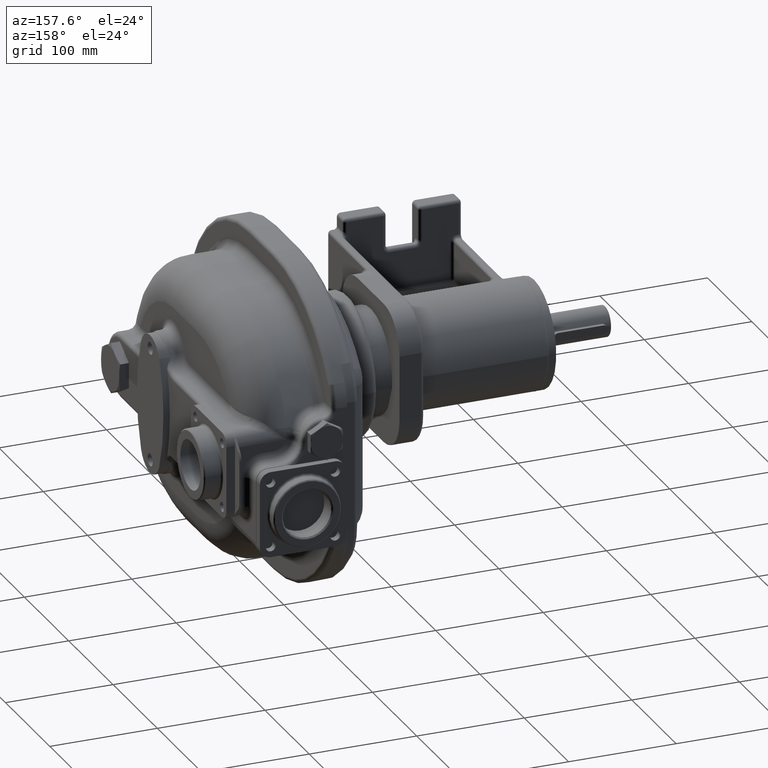
[diagram: clean part render]
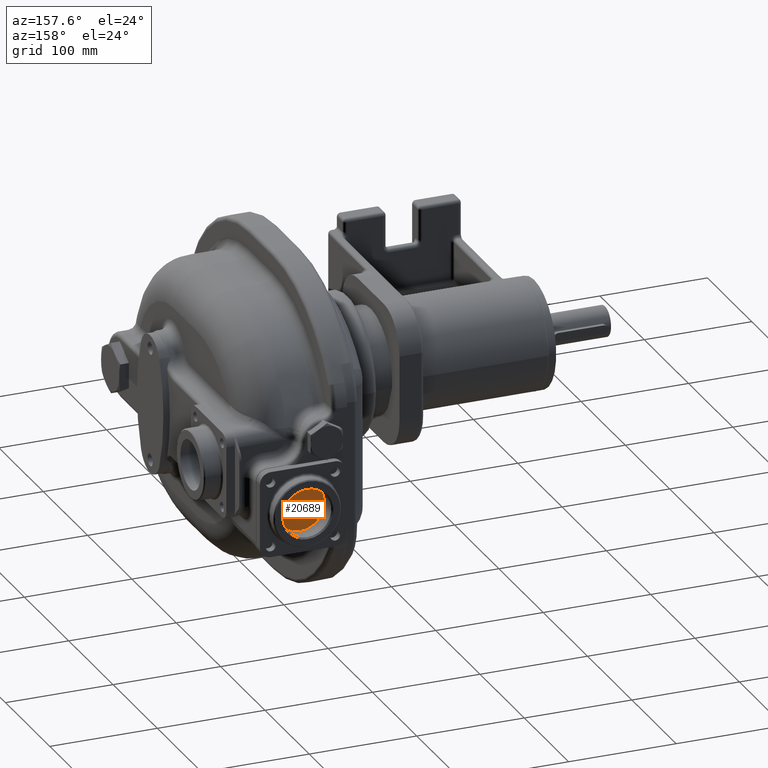
[diagram: same view with one face highlighted and labeled with its STEP entity id]
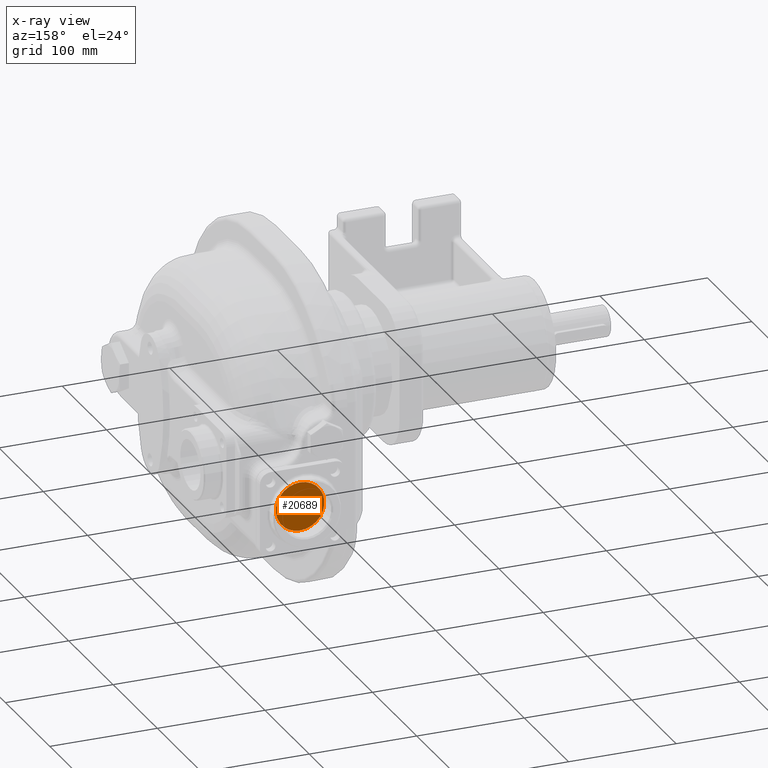
[diagram: x-ray of the same camera — body ghosted, the highlighted face saturated]
A machine part, auxiliary view. The second image highlights one B-rep face of the part: STEP entity #20689.
The next image is the same camera in x-ray: the body ghosted, the highlighted face saturated — about 0% of this face is hidden behind the body in this view.
In plain terms, the highlighted planar face has unit normal (0, 1, 0).
Its self-contained STEP definition (entity closure, byte-faithful):
#7906=CARTESIAN_POINT('',(1.95E1,1.84E2,-3.8E1));
#7907=DIRECTION('',(0.E0,1.E0,0.E0));
#7908=DIRECTION('',(0.E0,0.E0,-1.E0));
#7909=AXIS2_PLACEMENT_3D('',#7906,#7907,#7908);
#7919=CARTESIAN_POINT('',(1.95E1,1.84E2,-3.8E1));
#7920=DIRECTION('',(0.E0,1.E0,0.E0));
#7921=DIRECTION('',(0.E0,0.E0,1.E0));
#7922=AXIS2_PLACEMENT_3D('',#7919,#7920,#7921);
#8826=CARTESIAN_POINT('',(1.95E1,1.84E2,-1.54E1));
#8827=CARTESIAN_POINT('',(1.95E1,1.84E2,-6.06E1));
#8828=VERTEX_POINT('',#8826);
#8829=VERTEX_POINT('',#8827);
#20679=CARTESIAN_POINT('',(-2.45E1,1.84E2,5.840919818541E1));
#20680=DIRECTION('',(0.E0,1.E0,0.E0));
#20681=DIRECTION('',(0.E0,0.E0,-1.E0));
#20682=AXIS2_PLACEMENT_3D('',#20679,#20680,#20681);
#20683=PLANE('',#20682);
#20685=ORIENTED_EDGE('',*,*,#20684,.F.);
#20686=ORIENTED_EDGE('',*,*,#20669,.F.);
#20687=EDGE_LOOP('',(#20685,#20686));
#20688=FACE_OUTER_BOUND('',#20687,.F.);
#20689=ADVANCED_FACE('',(#20688),#20683,.T.);
#7910=CIRCLE('',#7909,2.26E1);
#7923=CIRCLE('',#7922,2.26E1);
#20669=EDGE_CURVE('',#8829,#8828,#7910,.T.);
#20684=EDGE_CURVE('',#8828,#8829,#7923,.T.);